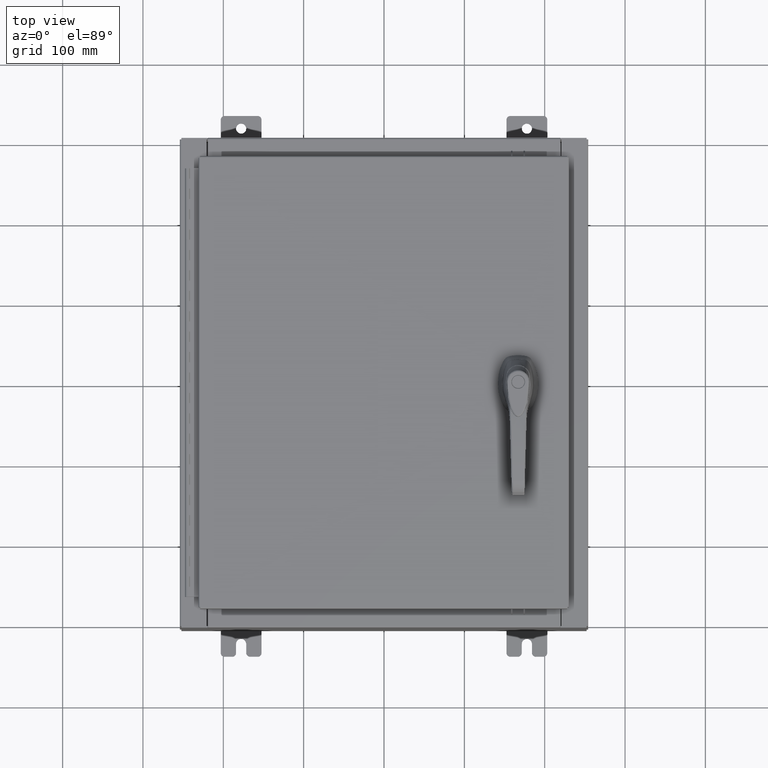
[diagram: clean part render]
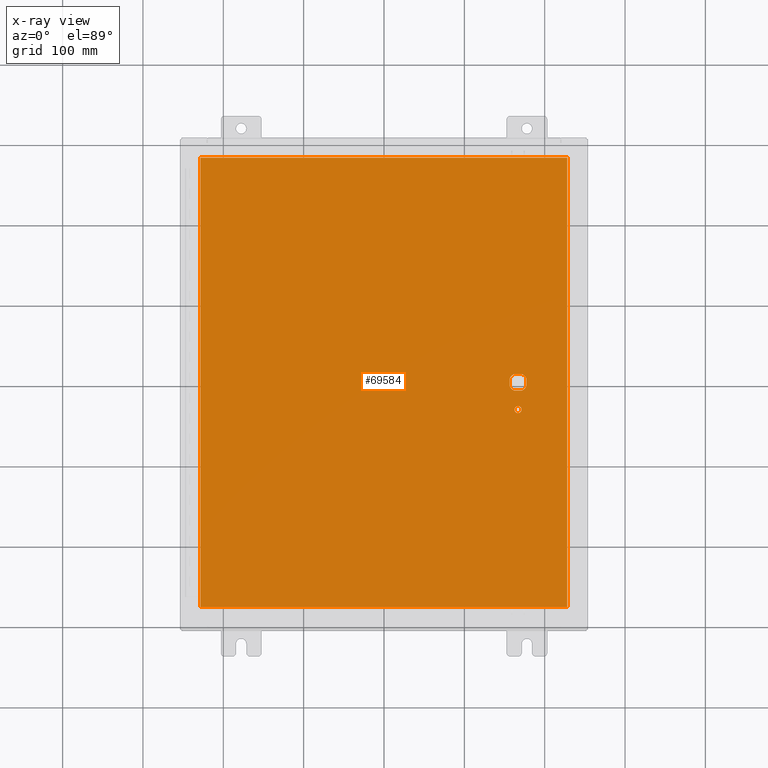
[diagram: x-ray — body ghosted, one internal face saturated and labeled with its STEP entity id]
A machine part, top view, then the same camera in x-ray: the body is ghosted and one INTERNAL B-rep face — a face not visible from any outside direction — is saturated and labeled: STEP entity #69584.
In plain terms, the highlighted planar face has unit normal (0, 0, -1).
Its self-contained STEP definition (entity closure, byte-faithful):
#2728 = DIRECTION ( 'NONE',  ( -0.0000000000000000000, -0.0000000000000000000, 1.000000000000000000 ) ) ;
#3115 = CARTESIAN_POINT ( 'NONE',  ( 0.0000000000000000000, 0.0000000000000000000, -0.07470000000000000300 ) ) ;
#3845 = AXIS2_PLACEMENT_3D ( 'NONE', #108948, #57041, #5174 ) ;
#5140 = AXIS2_PLACEMENT_3D ( 'NONE', #60412, #8509, #69152 ) ;
#5174 = DIRECTION ( 'NONE',  ( -1.000000000000000000, 0.0000000000000000000, 0.0000000000000000000 ) ) ;
#5428 = VERTEX_POINT ( 'NONE', #24518 ) ;
#5789 = ORIENTED_EDGE ( 'NONE', *, *, #105663, .T. ) ;
#8367 = CARTESIAN_POINT ( 'NONE',  ( 8.990299999999999500, 11.00630000000000000, -0.07470000000000019700 ) ) ;
#8509 = DIRECTION ( 'NONE',  ( -0.0000000000000000000, -0.0000000000000000000, 1.000000000000000000 ) ) ;
#9005 = VERTEX_POINT ( 'NONE', #84588 ) ;
#9985 = ORIENTED_EDGE ( 'NONE', *, *, #96737, .T. ) ;
#11307 = VERTEX_POINT ( 'NONE', #71747 ) ;
#12121 = DIRECTION ( 'NONE',  ( -1.000000000000000000, 0.0000000000000000000, 0.0000000000000000000 ) ) ;
#12548 = PLANE ( 'NONE',  #21896 ) ;
#13053 = VERTEX_POINT ( 'NONE', #54825 ) ;
#13852 = EDGE_CURVE ( 'NONE', #5428, #67970, #69074, .T. ) ;
#14833 = EDGE_CURVE ( 'NONE', #79493, #68266, #60797, .T. ) ;
#15760 = CIRCLE ( 'NONE', #65032, 0.4499999999999156900 ) ;
#16025 = EDGE_CURVE ( 'NONE', #13053, #98854, #93208, .T. ) ;
#16233 = DIRECTION ( 'NONE',  ( 1.000000000000000000, 0.0000000000000000000, 0.0000000000000000000 ) ) ;
#17486 = VECTOR ( 'NONE', #72105, 39.37007874015748100 ) ;
#19744 = ORIENTED_EDGE ( 'NONE', *, *, #43768, .F. ) ;
#20157 = VECTOR ( 'NONE', #51646, 39.37007874015748100 ) ;
#20871 = CARTESIAN_POINT ( 'NONE',  ( 8.990299999999997700, 11.00630000000000000, -0.07470000000000000300 ) ) ;
#21263 = DIRECTION ( 'NONE',  ( 0.0000000000000000000, 0.0000000000000000000, -1.000000000000000000 ) ) ;
#21896 = AXIS2_PLACEMENT_3D ( 'NONE', #3115, #21263, #81866 ) ;
#24047 = DIRECTION ( 'NONE',  ( -0.0000000000000000000, -0.0000000000000000000, 1.000000000000000000 ) ) ;
#24518 = CARTESIAN_POINT ( 'NONE',  ( 6.175000000000072700, 0.2002273707563080300, -0.07470000000000003000 ) ) ;
#24524 = CARTESIAN_POINT ( 'NONE',  ( 6.577999999999998500, -1.338000000000000100, -0.07470000000000003000 ) ) ;
#25742 = FACE_BOUND ( 'NONE', #57520, .T. ) ;
#27125 = ORIENTED_EDGE ( 'NONE', *, *, #55502, .T. ) ;
#27444 = CARTESIAN_POINT ( 'NONE',  ( 6.577999999999998500, 0.0000000000000000000, -0.07470000000000003000 ) ) ;
#28452 = FACE_OUTER_BOUND ( 'NONE', #63120, .T. ) ;
#29298 = ORIENTED_EDGE ( 'NONE', *, *, #83570, .T. ) ;
#29456 = LINE ( 'NONE', #50467, #95923 ) ;
#29916 = CARTESIAN_POINT ( 'NONE',  ( -8.990300000000001300, -11.00630000000000100, -0.07469999999999910000 ) ) ;
#30551 = ORIENTED_EDGE ( 'NONE', *, *, #100331, .T. ) ;
#32841 = AXIS2_PLACEMENT_3D ( 'NONE', #24524, #85143, #33245 ) ;
#33245 = DIRECTION ( 'NONE',  ( -1.000000000000000000, 0.0000000000000000000, 0.0000000000000000000 ) ) ;
#34039 = VERTEX_POINT ( 'NONE', #101693 ) ;
#34432 = CARTESIAN_POINT ( 'NONE',  ( 8.990299999999997700, -11.00630000000000000, -0.07470000000000000300 ) ) ;
#35424 = VERTEX_POINT ( 'NONE', #99974 ) ;
#36183 = DIRECTION ( 'NONE',  ( -1.000000000000000000, 8.881784197001256300E-016, 0.0000000000000000000 ) ) ;
#36723 = VECTOR ( 'NONE', #104232, 39.37007874015748100 ) ;
#39849 = AXIS2_PLACEMENT_3D ( 'NONE', #27444, #88065, #36183 ) ;
#39857 = LINE ( 'NONE', #64002, #85935 ) ;
#40417 = CARTESIAN_POINT ( 'NONE',  ( -8.990299999999997700, -11.00630000000000100, -0.07470000000000000300 ) ) ;
#40635 = CIRCLE ( 'NONE', #32841, 0.1715000000000000700 ) ;
#43768 = EDGE_CURVE ( 'NONE', #9005, #56532, #109626, .T. ) ;
#45883 = CARTESIAN_POINT ( 'NONE',  ( 6.377772629243688500, 0.4029999999999252000, -0.07470000000000003000 ) ) ;
#47299 = ORIENTED_EDGE ( 'NONE', *, *, #13852, .T. ) ;
#47656 = CIRCLE ( 'NONE', #87829, 0.4499999999999156900 ) ;
#48679 = ORIENTED_EDGE ( 'NONE', *, *, #96895, .F. ) ;
#48832 = EDGE_LOOP ( 'NONE', ( #27125, #5789 ) ) ;
#50467 = CARTESIAN_POINT ( 'NONE',  ( -8.990299999999999500, 11.00630000000000100, -0.07470000000000019700 ) ) ;
#51646 = DIRECTION ( 'NONE',  ( 0.0000000000000000000, -1.000000000000000000, 0.0000000000000000000 ) ) ;
#54212 = FACE_BOUND ( 'NONE', #48832, .T. ) ;
#54302 = ORIENTED_EDGE ( 'NONE', *, *, #16025, .T. ) ;
#54605 = CARTESIAN_POINT ( 'NONE',  ( 6.577999999999998500, 0.0000000000000000000, -0.07470000000000003000 ) ) ;
#54798 = CARTESIAN_POINT ( 'NONE',  ( -8.990299999999999500, 11.00630000000000000, -0.07470000000000000300 ) ) ;
#54825 = CARTESIAN_POINT ( 'NONE',  ( 6.377772629243688500, -0.4029999999999250300, -0.07470000000000003000 ) ) ;
#55502 = EDGE_CURVE ( 'NONE', #11307, #34039, #78851, .T. ) ;
#56532 = VERTEX_POINT ( 'NONE', #82775 ) ;
#56820 = VERTEX_POINT ( 'NONE', #54798 ) ;
#57041 = DIRECTION ( 'NONE',  ( -0.0000000000000000000, -0.0000000000000000000, 1.000000000000000000 ) ) ;
#57520 = EDGE_LOOP ( 'NONE', ( #57704, #19744, #30551, #9985, #29298, #47299, #80222, #54302 ) ) ;
#57704 = ORIENTED_EDGE ( 'NONE', *, *, #111276, .T. ) ;
#60196 = LINE ( 'NONE', #29916, #75025 ) ;
#60412 = CARTESIAN_POINT ( 'NONE',  ( 6.577999999999998500, 0.0000000000000000000, -0.07470000000000003000 ) ) ;
#60797 = LINE ( 'NONE', #105533, #81085 ) ;
#63120 = EDGE_LOOP ( 'NONE', ( #72273, #48679, #94197, #102397 ) ) ;
#63326 = DIRECTION ( 'NONE',  ( -1.000000000000000000, 0.0000000000000000000, 0.0000000000000000000 ) ) ;
#64002 = CARTESIAN_POINT ( 'NONE',  ( 0.0000000000000000000, 0.4029999999999252000, -0.07470000000000003000 ) ) ;
#64331 = CARTESIAN_POINT ( 'NONE',  ( 6.175000000000072700, -0.2002273707563079800, -0.07470000000000003000 ) ) ;
#65032 = AXIS2_PLACEMENT_3D ( 'NONE', #54605, #2728, #63326 ) ;
#67970 = VERTEX_POINT ( 'NONE', #64331 ) ;
#68169 = CARTESIAN_POINT ( 'NONE',  ( 0.0000000000000000000, -0.4029999999999252000, -0.07470000000000003000 ) ) ;
#68266 = VERTEX_POINT ( 'NONE', #20871 ) ;
#68496 = EDGE_CURVE ( 'NONE', #68266, #56820, #108533, .T. ) ;
#69074 = LINE ( 'NONE', #106967, #17486 ) ;
#69152 = DIRECTION ( 'NONE',  ( -1.000000000000000000, 0.0000000000000000000, 0.0000000000000000000 ) ) ;
#69584 = ADVANCED_FACE ( 'NONE', ( #54212, #28452, #25742 ), #12548, .T. ) ;
#71042 = DIRECTION ( 'NONE',  ( 0.0000000000000000000, 1.000000000000000000, 0.0000000000000000000 ) ) ;
#71747 = CARTESIAN_POINT ( 'NONE',  ( 6.749499999999998500, -1.338000000000000100, -0.07470000000000003000 ) ) ;
#72105 = DIRECTION ( 'NONE',  ( 0.0000000000000000000, -1.000000000000000000, 0.0000000000000000000 ) ) ;
#72273 = ORIENTED_EDGE ( 'NONE', *, *, #14833, .F. ) ;
#74251 = EDGE_CURVE ( 'NONE', #56820, #86561, #29456, .T. ) ;
#75025 = VECTOR ( 'NONE', #93551, 39.37007874015748100 ) ;
#75863 = DIRECTION ( 'NONE',  ( 0.0000000000000000000, -1.000000000000000000, 0.0000000000000000000 ) ) ;
#75917 = CARTESIAN_POINT ( 'NONE',  ( 6.577999999999998500, 0.0000000000000000000, -0.07470000000000003000 ) ) ;
#78851 = CIRCLE ( 'NONE', #3845, 0.1715000000000000700 ) ;
#79493 = VERTEX_POINT ( 'NONE', #34432 ) ;
#79920 = EDGE_CURVE ( 'NONE', #67970, #13053, #103409, .T. ) ;
#80222 = ORIENTED_EDGE ( 'NONE', *, *, #79920, .T. ) ;
#81085 = VECTOR ( 'NONE', #71042, 39.37007874015748100 ) ;
#81866 = DIRECTION ( 'NONE',  ( -1.000000000000000000, 0.0000000000000000000, -0.0000000000000000000 ) ) ;
#82775 = CARTESIAN_POINT ( 'NONE',  ( 6.980999999999924400, -0.2002273707563080300, -0.07470000000000003000 ) ) ;
#83570 = EDGE_CURVE ( 'NONE', #102536, #5428, #97539, .T. ) ;
#84588 = CARTESIAN_POINT ( 'NONE',  ( 6.980999999999924400, 0.2002273707563080300, -0.07470000000000003000 ) ) ;
#84645 = DIRECTION ( 'NONE',  ( -1.000000000000000000, 0.0000000000000000000, 0.0000000000000000000 ) ) ;
#85143 = DIRECTION ( 'NONE',  ( -0.0000000000000000000, -0.0000000000000000000, 1.000000000000000000 ) ) ;
#85935 = VECTOR ( 'NONE', #12121, 39.37007874015748100 ) ;
#86561 = VERTEX_POINT ( 'NONE', #40417 ) ;
#87829 = AXIS2_PLACEMENT_3D ( 'NONE', #75917, #24047, #84645 ) ;
#88065 = DIRECTION ( 'NONE',  ( -0.0000000000000000000, -0.0000000000000000000, 1.000000000000000000 ) ) ;
#90432 = VECTOR ( 'NONE', #16233, 39.37007874015748100 ) ;
#93208 = LINE ( 'NONE', #68169, #90432 ) ;
#93551 = DIRECTION ( 'NONE',  ( 1.000000000000000000, -0.0000000000000000000, -0.0000000000000000000 ) ) ;
#94197 = ORIENTED_EDGE ( 'NONE', *, *, #74251, .F. ) ;
#95923 = VECTOR ( 'NONE', #75863, 39.37007874015748100 ) ;
#96737 = EDGE_CURVE ( 'NONE', #35424, #102536, #39857, .T. ) ;
#96895 = EDGE_CURVE ( 'NONE', #86561, #79493, #60196, .T. ) ;
#97539 = CIRCLE ( 'NONE', #5140, 0.4499999999999156900 ) ;
#98854 = VERTEX_POINT ( 'NONE', #111803 ) ;
#99974 = CARTESIAN_POINT ( 'NONE',  ( 6.778227370756308500, 0.4029999999999250300, -0.07470000000000003000 ) ) ;
#100331 = EDGE_CURVE ( 'NONE', #9005, #35424, #47656, .T. ) ;
#101693 = CARTESIAN_POINT ( 'NONE',  ( 6.406499999999998500, -1.338000000000000100, -0.07470000000000003000 ) ) ;
#102397 = ORIENTED_EDGE ( 'NONE', *, *, #68496, .F. ) ;
#102536 = VERTEX_POINT ( 'NONE', #45883 ) ;
#103409 = CIRCLE ( 'NONE', #39849, 0.4499999999999156900 ) ;
#104232 = DIRECTION ( 'NONE',  ( -1.000000000000000000, -0.0000000000000000000, -0.0000000000000000000 ) ) ;
#105533 = CARTESIAN_POINT ( 'NONE',  ( 8.990299999999997700, -11.00630000000000000, -0.07470000000000021100 ) ) ;
#105663 = EDGE_CURVE ( 'NONE', #34039, #11307, #40635, .T. ) ;
#106967 = CARTESIAN_POINT ( 'NONE',  ( 6.175000000000072700, 0.0000000000000000000, -0.07470000000000003000 ) ) ;
#108533 = LINE ( 'NONE', #8367, #36723 ) ;
#108948 = CARTESIAN_POINT ( 'NONE',  ( 6.577999999999998500, -1.338000000000000100, -0.07470000000000003000 ) ) ;
#109626 = LINE ( 'NONE', #112291, #20157 ) ;
#111276 = EDGE_CURVE ( 'NONE', #98854, #56532, #15760, .T. ) ;
#111803 = CARTESIAN_POINT ( 'NONE',  ( 6.778227370756308500, -0.4029999999999252000, -0.07470000000000003000 ) ) ;
#112291 = CARTESIAN_POINT ( 'NONE',  ( 6.980999999999924400, 0.0000000000000000000, -0.07470000000000003000 ) ) ;